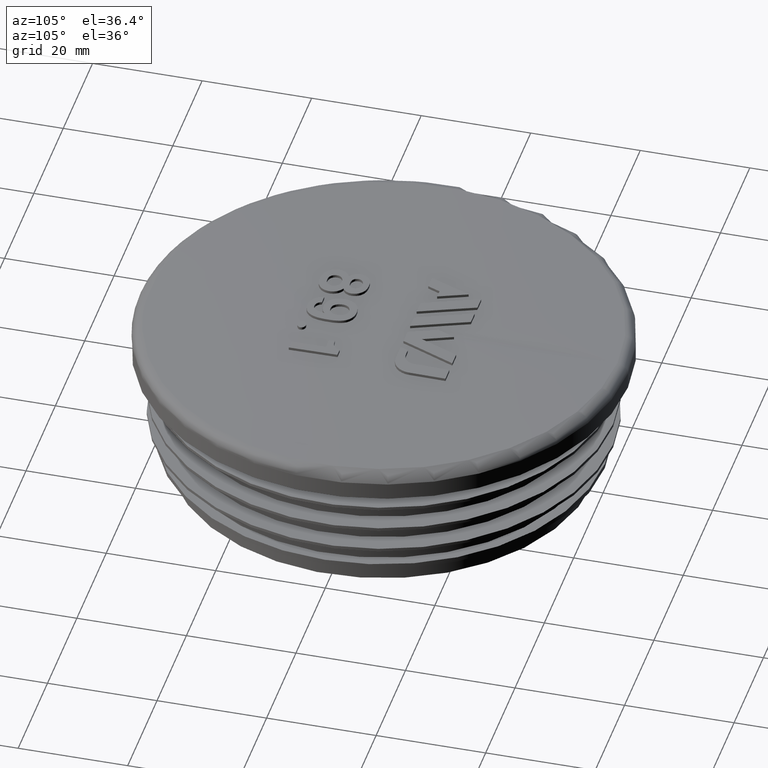
[diagram: clean part render]
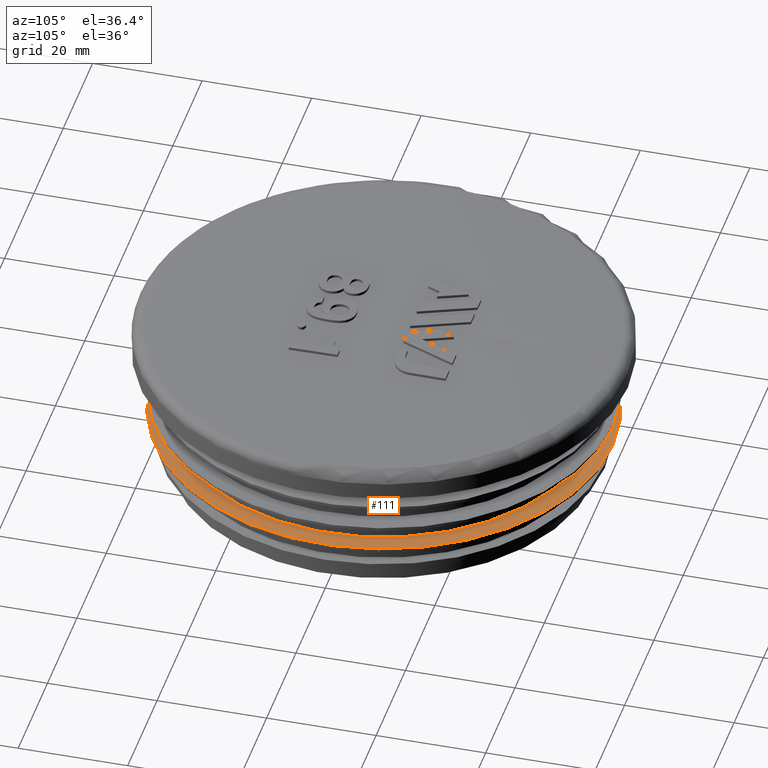
[diagram: same view with one face highlighted and labeled with its STEP entity id]
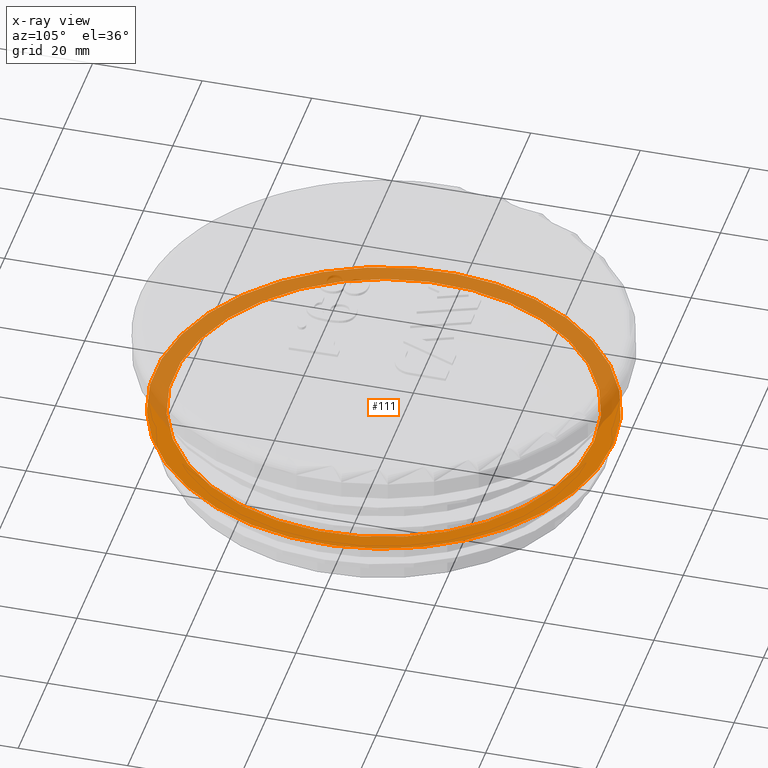
[diagram: x-ray of the same camera — body ghosted, the highlighted face saturated]
A machine part, auxiliary view. The second image highlights one B-rep face of the part: STEP entity #111.
The next image is the same camera in x-ray: the body ghosted, the highlighted face saturated — about 52% of this face is hidden behind the body in this view.
In plain terms, the highlighted planar face has unit normal (0, -0, -1).
Its self-contained STEP definition (entity closure, byte-faithful):
#111 = ADVANCED_FACE( '', ( #260, #261 ), #262, .F. );
#260 = FACE_OUTER_BOUND( '', #664, .T. );
#261 = FACE_BOUND( '', #665, .T. );
#262 = PLANE( '', #666 );
#664 = EDGE_LOOP( '', ( #1228 ) );
#665 = EDGE_LOOP( '', ( #1229 ) );
#666 = AXIS2_PLACEMENT_3D( '', #1230, #1231, #1232 );
#1228 = ORIENTED_EDGE( '', *, *, #1618, .F. );
#1229 = ORIENTED_EDGE( '', *, *, #1617, .T. );
#1230 = CARTESIAN_POINT( '', ( -38.3500000000000, -7.95994129984545E-016, 9.00000000000000 ) );
#1231 = DIRECTION( '', ( 0.000000000000000, -6.12303176911189E-017, -1.00000000000000 ) );
#1232 = DIRECTION( '', ( 0.000000000000000, 1.00000000000000, -6.12303176911189E-017 ) );
#1617 = EDGE_CURVE( '', #1849, #1849, #1850, .T. );
#1618 = EDGE_CURVE( '', #1851, #1851, #1852, .T. );
#1849 = VERTEX_POINT( '', #3153 );
#1850 = CIRCLE( '', #3154, 38.3500000000000 );
#1851 = VERTEX_POINT( '', #3155 );
#1852 = CIRCLE( '', #3156, 41.8500000000000 );
#3153 = CARTESIAN_POINT( '', ( 0.000000000000000, 38.3500000000000, 8.99999999999999 ) );
#3154 = AXIS2_PLACEMENT_3D( '', #3503, #3504, #3505 );
#3155 = CARTESIAN_POINT( '', ( 0.000000000000000, 41.8500000000000, 9.00000000000000 ) );
#3156 = AXIS2_PLACEMENT_3D( '', #3506, #3507, #3508 );
#3503 = CARTESIAN_POINT( '', ( 0.000000000000000, -7.95994129984545E-016, 9.00000000000000 ) );
#3504 = DIRECTION( '', ( 0.000000000000000, -6.12303176911189E-017, -1.00000000000000 ) );
#3505 = DIRECTION( '', ( 0.000000000000000, 1.00000000000000, -6.12303176911189E-017 ) );
#3506 = CARTESIAN_POINT( '', ( 0.000000000000000, -7.95994129984545E-016, 9.00000000000000 ) );
#3507 = DIRECTION( '', ( 0.000000000000000, -6.12303176911189E-017, -1.00000000000000 ) );
#3508 = DIRECTION( '', ( 0.000000000000000, 1.00000000000000, -6.12303176911189E-017 ) );